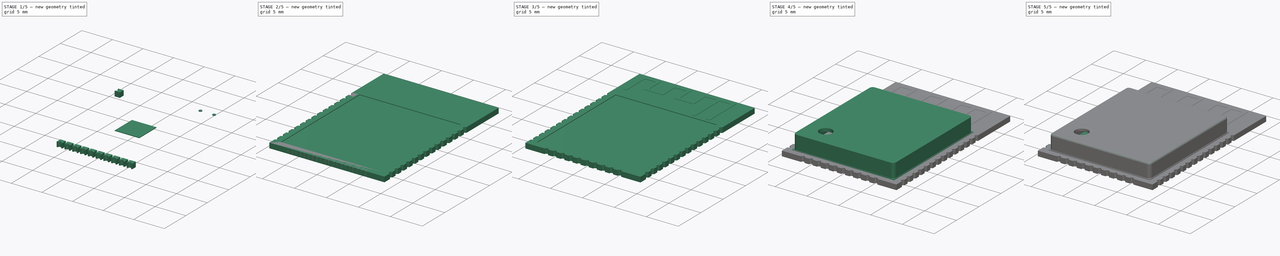
[diagram: build sequence overview — one tinted view per stage of 5, left to right]
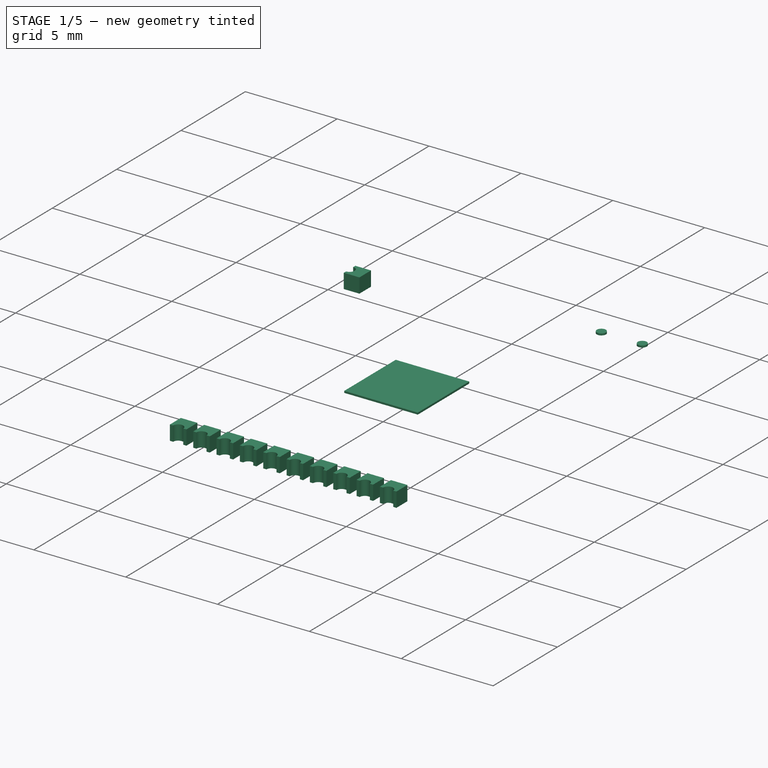
[diagram: stage 1 of 5 — iso view after this stage's code; geometry added in this stage tinted green]
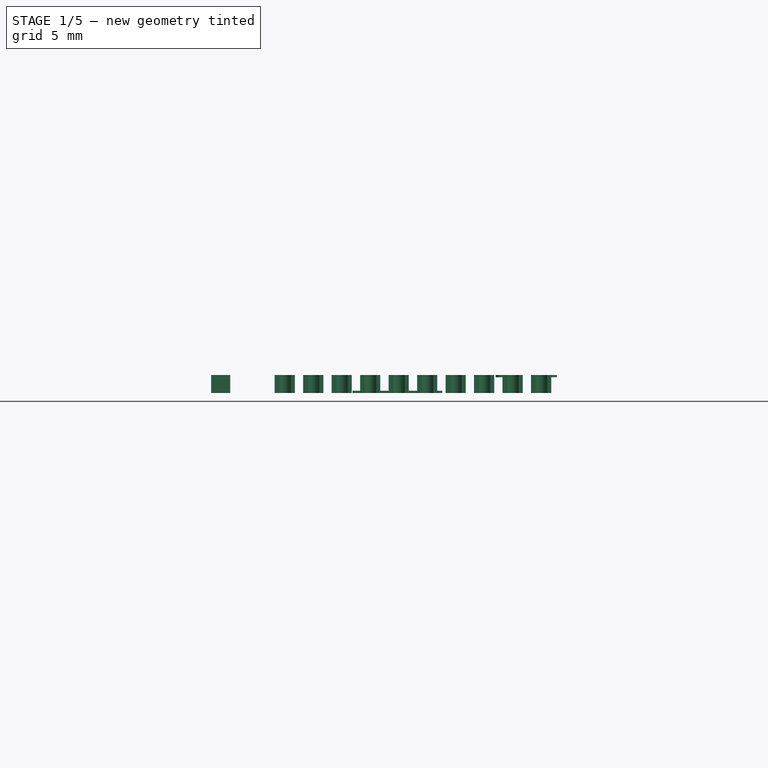
[diagram: stage 1 of 5 — front view after this stage's code; geometry added in this stage tinted green]
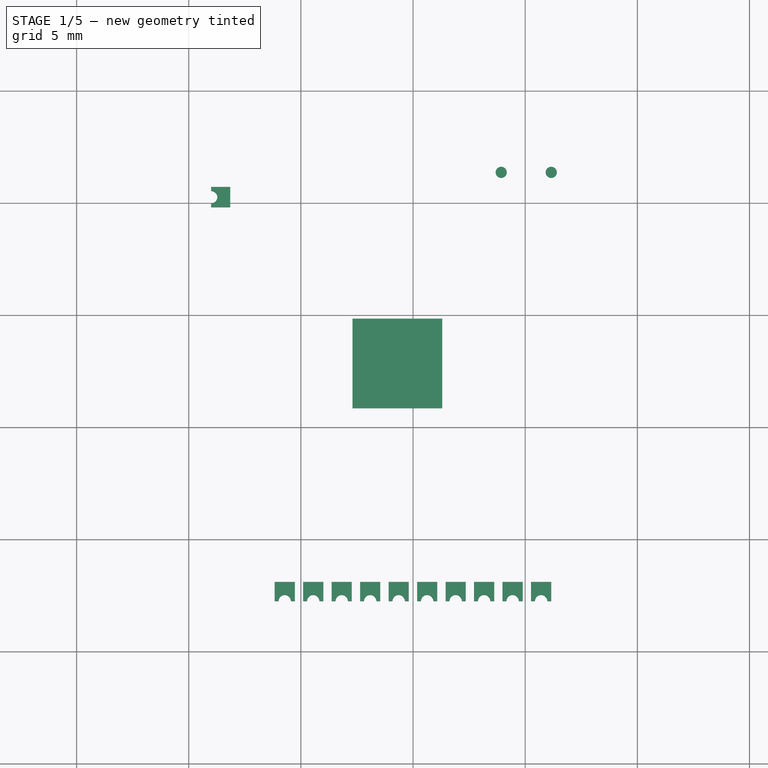
[diagram: stage 1 of 5 — top view after this stage's code; geometry added in this stage tinted green]
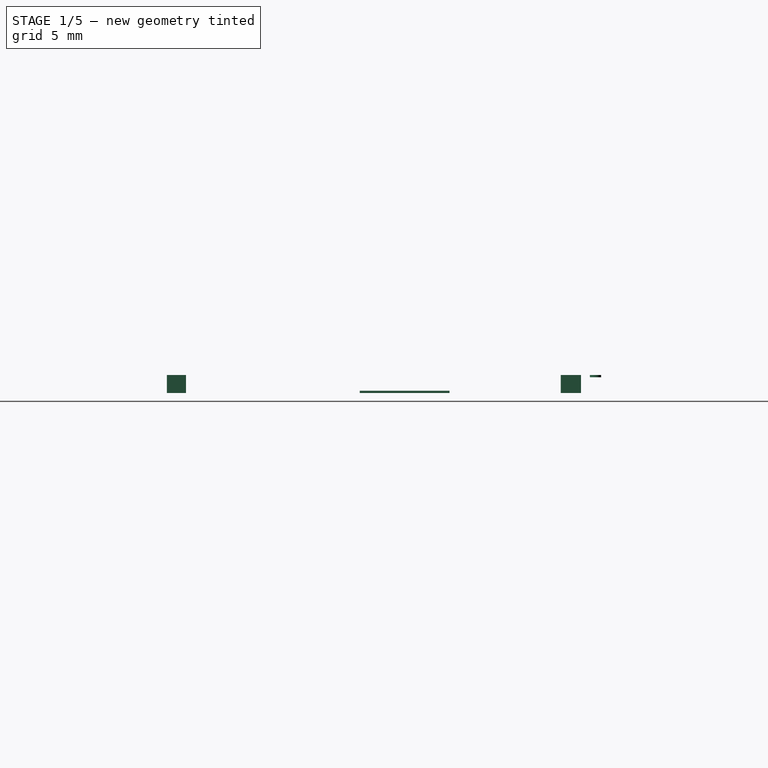
[diagram: stage 1 of 5 — right view after this stage's code; geometry added in this stage tinted green]
FCSTD DOCUMENT  (FreeCAD 0.17R13370 (Git))
Label: ESP-WROOM-32
License: All rights reserved
LicenseURL: http://en.wikipedia.org/wiki/All_rights_reserved
objects: Sketcher::SketchObject×16, PartDesign::Pocket×8, PartDesign::Pad×7, PartDesign::Body×7, PartDesign::Fillet×7, PartDesign::ShapeBinder×6, Part::Feature×3, Part::Extrusion×3, PartDesign::LinearPattern×2, Part::FeaturePython×2, Part::MultiFuse×2, PartDesign::Mirrored×1, PartDesign::MultiTransform×1, Part::Mirroring×1, Image::ImagePlane×1
note: 81 computed .brp shape members not serialized (recipe doc carries the construction recipe); baked Part::Feature solids carry a one-line shape summary decoded from their .brp

FEATURE [PartDesign::ShapeBinder] CopyLinearPattern001001
FEATURE [Sketcher::SketchObject] Sketch010
  ExternalGeometry = -> [CopyLinearPattern001001]
  MapMode = 5
  Placement = pos=(0,0,0.8) rot=(0,0,1;0rad)
  Support = -> [CopyLinearPattern001001]
  sketch-geometry (6):
    g0: LineSegment StartX=-9 StartY=5.71 StartZ=0 EndX=-8.15 EndY=5.71 EndZ=0
    g1: LineSegment StartX=-8.15 StartY=5.71 StartZ=0 EndX=-8.15 EndY=4.81 EndZ=0
    g2: LineSegment StartX=-8.15 StartY=4.81 StartZ=0 EndX=-9 EndY=4.81 EndZ=0
    g3: ArcOfCircle CenterX=-9 CenterY=5.26 CenterZ=0 NormalX=0 NormalY=0 NormalZ=1 AngleXU=0 Radius=0.275 StartAngle=4.71239 EndAngle=7.85398
    g4: LineSegment StartX=-9 StartY=5.535 StartZ=0 EndX=-9 EndY=5.71 EndZ=0
    g5: LineSegment StartX=-9 StartY=4.985 StartZ=0 EndX=-9 EndY=4.81 EndZ=0
  constraints (15):
    c: Coincident(g0,g1)
    c: Coincident(g1,g2)
    c: Horizontal(g0)
    c: Horizontal(g2)
    c: Vertical(g1)
    c: DistanceX(g0,g0) = 0.85
    c: Coincident(g0,g-3)
    c: Radius(g3) = 0.275
    c: DistanceY(g2,g3) = 0.45
    c: Coincident(g4,g3)
    c: Coincident(g4,g0)
    c: Vertical(g4)
    c: Coincident(g5,g3)
    c: Coincident(g5,g2)
    c: Vertical(g5)
FEATURE [PartDesign::Pad] Pad004
  Length = 0.8
  Length2 = 100
  Profile = -> Sketch010
  Reversed = true
  Type = 0
FEATURE [PartDesign::ShapeBinder] CopyLinearPattern001002
FEATURE [Sketcher::SketchObject] Sketch011
  ExternalGeometry = -> [CopyLinearPattern001002]
  MapMode = 5
  Placement = pos=(0,0,0.8) rot=(0,0,1;0rad)
  Support = -> [CopyLinearPattern001002]
  sketch-geometry (6):
    g0: LineSegment StartX=-9 StartY=5.71 StartZ=0 EndX=-8.15 EndY=5.71 EndZ=0
    g1: LineSegment StartX=-8.15 StartY=5.71 StartZ=0 EndX=-8.15 EndY=4.81 EndZ=0
    g2: LineSegment StartX=-8.15 StartY=4.81 StartZ=0 EndX=-9 EndY=4.81 EndZ=0
    g3: ArcOfCircle CenterX=-9 CenterY=5.26 CenterZ=0 NormalX=0 NormalY=0 NormalZ=1 AngleXU=0 Radius=0.275 StartAngle=4.71239 EndAngle=7.85398
    g4: LineSegment StartX=-9 StartY=5.535 StartZ=0 EndX=-9 EndY=5.71 EndZ=0
    g5: LineSegment StartX=-9 StartY=4.985 StartZ=0 EndX=-9 EndY=4.81 EndZ=0
  constraints (15):
    c: Coincident(g0,g1)
    c: Coincident(g1,g2)
    c: Horizontal(g0)
    c: Horizontal(g2)
    c: Vertical(g1)
    c: DistanceX(g0,g0) = 0.85
    c: Coincident(g0,g-3)
    c: Radius(g3) = 0.275
    c: DistanceY(g2,g3) = 0.45
    c: Coincident(g4,g3)
    c: Coincident(g4,g0)
    c: Vertical(g4)
    c: Coincident(g5,g3)
    c: Coincident(g5,g2)
    c: Vertical(g5)
FEATURE [PartDesign::Pad] Pad005
  Length = 0.8
  Length2 = 100
  Profile = -> Sketch011
  Reversed = true
  Type = 0
FEATURE [PartDesign::Body] Body005  label="pad001"
  Group = -> [CopyLinearPattern001002,Sketch011,Pad005]
  Origin = -> Origin005
  Tip = -> Pad005
FEATURE [Part::FeaturePython] Array001  # Draft array (typed FeaturePython)
  Angle = 360
  ArrayType = 0
  Axis = (0,0,1)
  Base = -> Body005
  Center = (0,0,0)
  Fuse = false
  IntervalAxis = (0,0,0)
  IntervalX = (1,0,0)
  IntervalY = (0,1.27,0)
  IntervalZ = (0,0,0)
  NumberPolar = 1
  NumberX = 1
  NumberY = 10
  NumberZ = 1
  Placement = pos=(10.97,-3.75,0) rot=(0,0,1;1.5708rad)
FEATURE [Part::Feature] Face
  Placement = pos=(0,0,0.1) rot=(0,0,1;0rad)
  shape: bbox 4 x 4 x 2e-07 mm, 1 faces, 0 solids (baked)
FEATURE [Part::Extrusion] Extrusion  label="GND_pad_lg"
  Base = -> Face
  Dir = (0,0,-0.1)
  DirMode = 0
  FaceMakerClass = Part::FaceMakerBullseye
  LengthFwd = 0
  LengthRev = 0
  Solid = true
  Symmetric = false
FEATURE [PartDesign::Body] Body  label="pcb_base"
  Group = -> [Sketch,Pad,Sketch001,Pocket,Sketch007,Pocket003,MultiTransform,LinearPattern,Mirrored,Sketch008,Pocket004,LinearPattern001,Sketch012,Pocket005,Sketch015,Pocket007]
  Origin = -> Origin
  Tip = -> Pocket007
FEATURE [Part::Feature] Face001
  Placement = pos=(0,0,-0.1) rot=(0,0,1;0rad)
  shape: bbox 0.5 x 0.5 x 2e-07 mm, 1 faces, 0 solids (baked)
FEATURE [Part::Extrusion] Extrusion001  label="antenna_pad1"
  Base = -> Face001
  Dir = (0,0,0.1)
  DirMode = 0
  FaceMakerClass = Part::FaceMakerBullseye
  LengthFwd = 0
  LengthRev = 0
  Solid = true
  Symmetric = false
FEATURE [Part::Feature] Face002
  Placement = pos=(0,0,-0.1) rot=(0,0,1;0rad)
  shape: bbox 0.5 x 0.5 x 2e-07 mm, 1 faces, 0 solids (baked)
FEATURE [Part::Extrusion] Extrusion002  label="antenna_pad2"
  Base = -> Face002
  Dir = (0,0,0.1)
  DirMode = 0
  FaceMakerClass = Part::FaceMakerBullseye
  LengthFwd = 0
  LengthRev = 0
  Solid = true
  Symmetric = false
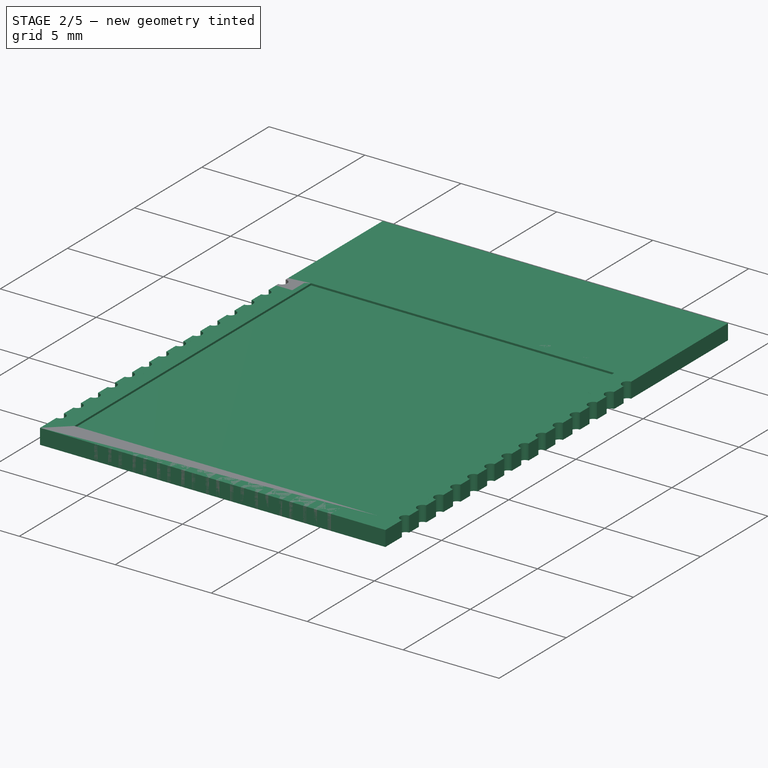
[diagram: stage 2 of 5 — iso view after this stage's code; geometry added in this stage tinted green]
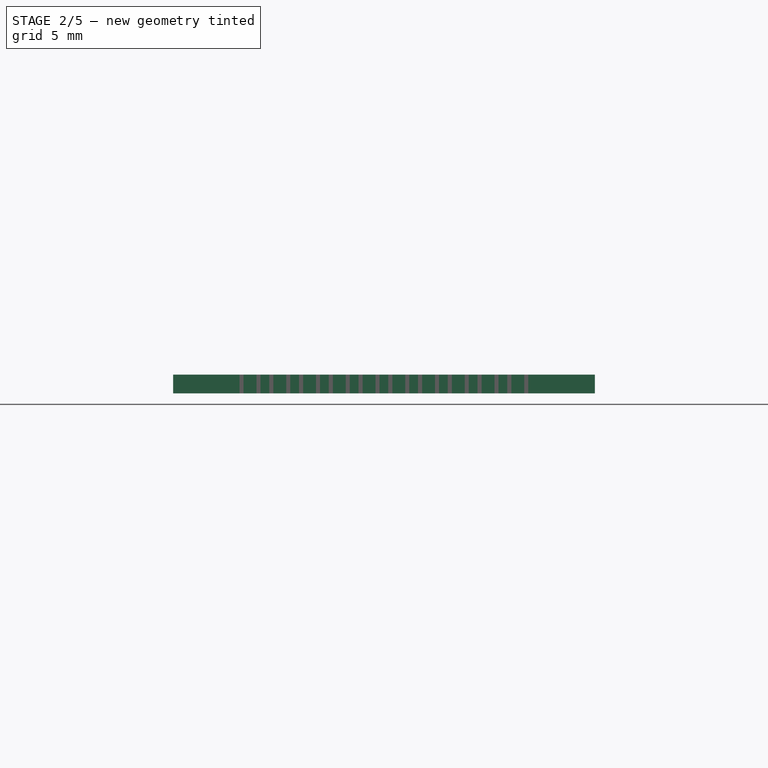
[diagram: stage 2 of 5 — front view after this stage's code; geometry added in this stage tinted green]
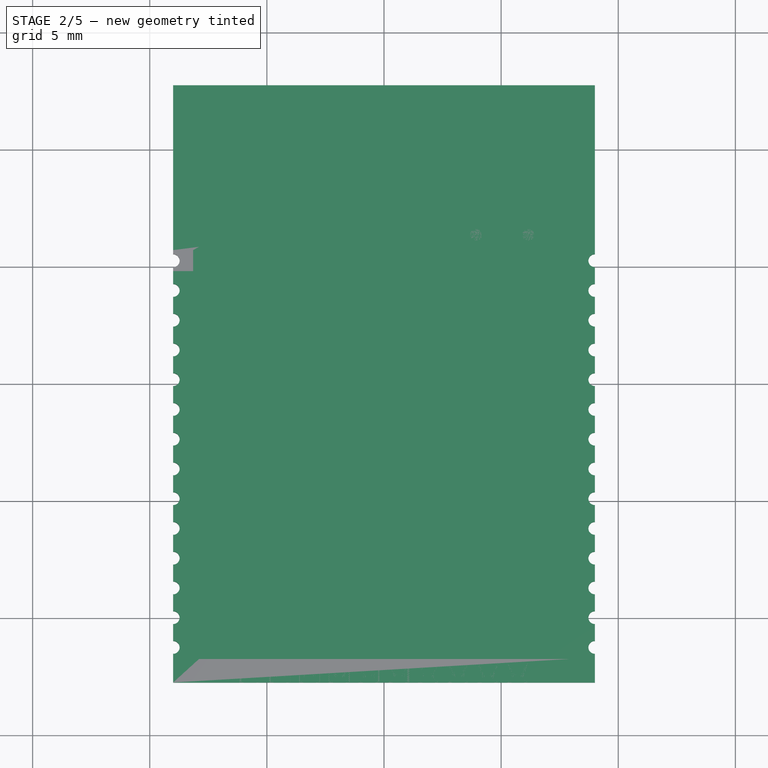
[diagram: stage 2 of 5 — top view after this stage's code; geometry added in this stage tinted green]
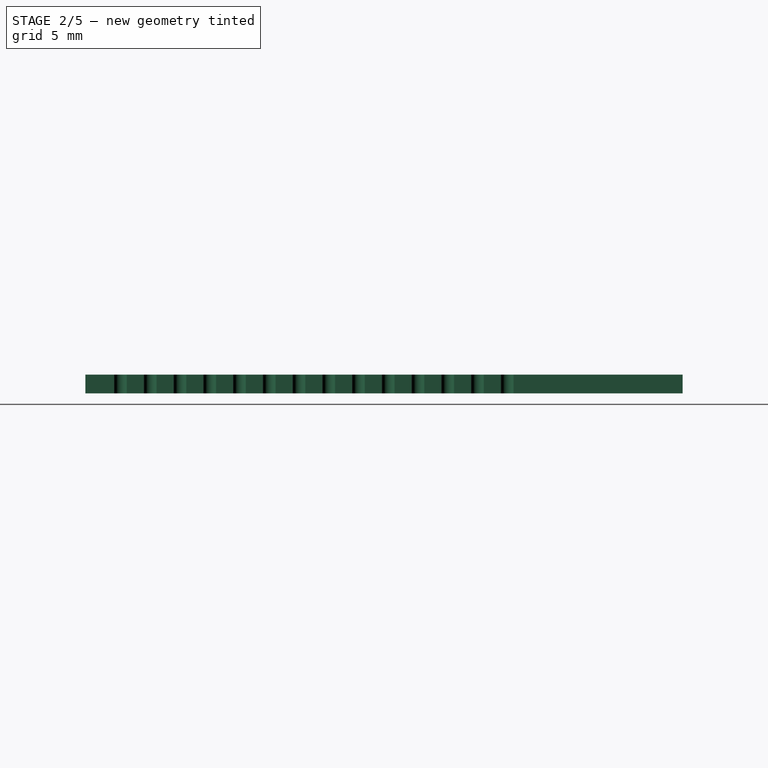
[diagram: stage 2 of 5 — right view after this stage's code; geometry added in this stage tinted green]
FEATURE [Sketcher::SketchObject] Sketch
  MapMode = 5
  Support = -> [XY_Plane]
  sketch-geometry (4):
    g0: LineSegment StartX=-9 StartY=12.75 StartZ=0 EndX=9 EndY=12.75 EndZ=0
    g1: LineSegment StartX=9 StartY=12.75 StartZ=0 EndX=9 EndY=-12.75 EndZ=0
    g2: LineSegment StartX=9 StartY=-12.75 StartZ=0 EndX=-9 EndY=-12.75 EndZ=0
    g3: LineSegment StartX=-9 StartY=-12.75 StartZ=0 EndX=-9 EndY=12.75 EndZ=0
  constraints (12):
    c: Coincident(g0,g1)
    c: Coincident(g1,g2)
    c: Coincident(g2,g3)
    c: Coincident(g3,g0)
    c: Horizontal(g0)
    c: Horizontal(g2)
    c: Vertical(g1)
    c: Vertical(g3)
    c: Symmetric(g0,g0,g-2)
    c: Symmetric(g0,g1,g-1)
    c: Distance(g0) = 18
    c: Distance(g3) = 25.5
FEATURE [PartDesign::Pad] Pad
  Length = 0.8
  Length2 = 100
  Profile = -> Sketch
  Type = 0
FEATURE [Sketcher::SketchObject] Sketch001
  ExternalGeometry = -> [Pad]
  MapMode = 5
  Placement = pos=(0,0,0.8) rot=(0,0,1;0rad)
  Support = -> [Pad]
  sketch-geometry (4):
    g0: LineSegment StartX=-7.9 StartY=5.85 StartZ=0 EndX=7.9 EndY=5.85 EndZ=0
    g1: LineSegment StartX=7.9 StartY=5.85 StartZ=0 EndX=7.9 EndY=-11.75 EndZ=0
    g2: LineSegment StartX=7.9 StartY=-11.75 StartZ=0 EndX=-7.9 EndY=-11.75 EndZ=0
    g3: LineSegment StartX=-7.9 StartY=-11.75 StartZ=0 EndX=-7.9 EndY=5.85 EndZ=0
  constraints (12):
    c: Coincident(g0,g1)
    c: Coincident(g1,g2)
    c: Coincident(g2,g3)
    c: Coincident(g3,g0)
    c: Horizontal(g0)
    c: Horizontal(g2)
    c: Vertical(g1)
    c: Vertical(g3)
    c: DistanceY(g0,g-3) = 6.9
    c: Symmetric(g0,g0,g-2)
    c: Distance(g0) = 15.8
    c: Distance(g3) = 17.6
FEATURE [PartDesign::Pocket] Pocket
  BaseFeature = -> Pad
  Length = 0.1
  Length2 = 100
  Profile = -> Sketch001
  Type = 0
FEATURE [PartDesign::Body] Body002  label="cover"
  Group = -> [CopyFillet003,Sketch003,Pad002,Sketch004,Pad003,Sketch005,Pocket001,Sketch006,Pocket002,Fillet,Fillet001,Fillet002,Fillet003,Fillet004]
  Origin = -> Origin002
  Tip = -> Fillet004
FEATURE [Sketcher::SketchObject] Sketch007
  ExternalGeometry = -> [Pocket]
  MapMode = 5
  Placement = pos=(0,0,0.8) rot=(0,0,1;0rad)
  Support = -> [Pocket]
  sketch-geometry (4):
    g0: LineSegment StartX=-9 StartY=-10.8 StartZ=0 EndX=-8.15 EndY=-10.8 EndZ=0
    g1: LineSegment StartX=-8.15 StartY=-10.8 StartZ=0 EndX=-8.15 EndY=-11.7 EndZ=0
    g2: LineSegment StartX=-8.15 StartY=-11.7 StartZ=0 EndX=-9 EndY=-11.7 EndZ=0
    g3: LineSegment StartX=-9 StartY=-11.7 StartZ=0 EndX=-9 EndY=-10.8 EndZ=0
  constraints (12):
    c: Coincident(g0,g1)
    c: Coincident(g1,g2)
    c: Coincident(g2,g3)
    c: Coincident(g3,g0)
    c: Horizontal(g0)
    c: Horizontal(g2)
    c: Vertical(g1)
    c: Vertical(g3)
    c: DistanceY(g-3,g2) = 1.05
    c: Distance(g3) = 0.9
    c: Distance(g0) = 0.85
    c: DistanceX(g2,g-3) = 0
FEATURE [PartDesign::Pocket] Pocket003
  BaseFeature = -> Pocket
  Length = 0.8
  Length2 = 100
  Profile = -> Sketch007
  Type = 0
FEATURE [PartDesign::LinearPattern] LinearPattern
  Direction = -> Sketch007 [V_Axis]
  Length = 16.51
  Occurrences = 14
FEATURE [PartDesign::Mirrored] Mirrored
  MirrorPlane = -> Sketch007 [V_Axis]
FEATURE [PartDesign::MultiTransform] MultiTransform
  BaseFeature = -> Pocket003
  Originals = -> [Pocket003]
  Transformations = -> [LinearPattern,Mirrored]
FEATURE [PartDesign::Body] Body004  label="pad"
  Group = -> [CopyLinearPattern001001,Sketch010,Pad004]
  Origin = -> Origin004
  Tip = -> Pad004
FEATURE [Part::FeaturePython] Array  # Draft array (typed FeaturePython)
  Angle = 360
  ArrayType = 0
  Axis = (0,0,1)
  Base = -> Body004
  Center = (0,0,0)
  Fuse = false
  IntervalAxis = (0,1.27,0)
  IntervalX = (17.15,0,0)
  IntervalY = (0,-1.27,0)
  IntervalZ = (0,0,0)
  NumberPolar = 1
  NumberX = 1
  NumberY = 14
  NumberZ = 1
FEATURE [Part::Mirroring] mirror  label="Mirror of Array"
  Base = (0,12.75,0)
  Normal = (-1,0,0)
  Source = -> Array
FEATURE [Part::MultiFuse] Fusion  label="pads"
  Shapes = -> [Extrusion002,Extrusion001,Extrusion,Array001,mirror,Array]
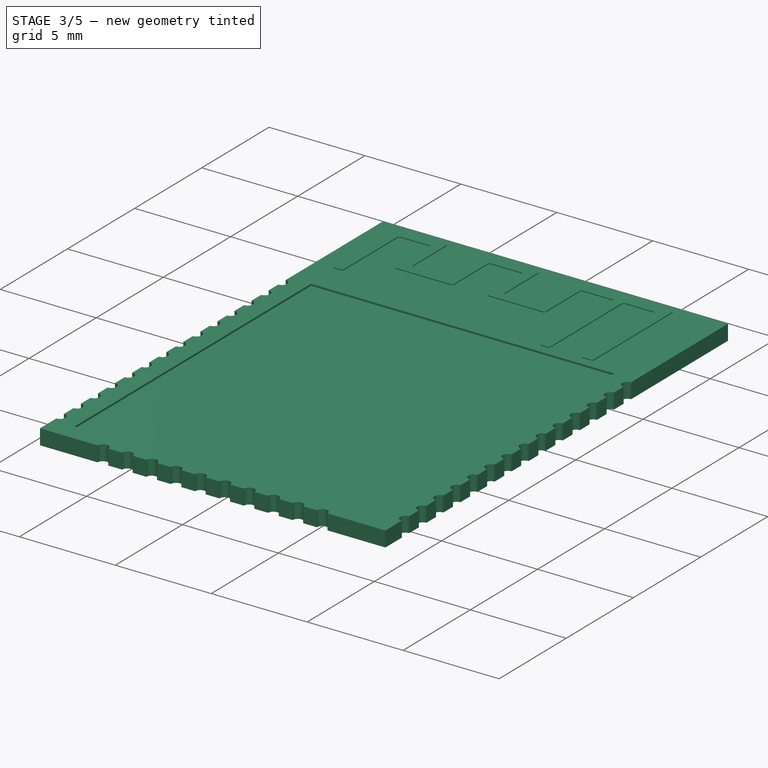
[diagram: stage 3 of 5 — iso view after this stage's code; geometry added in this stage tinted green]
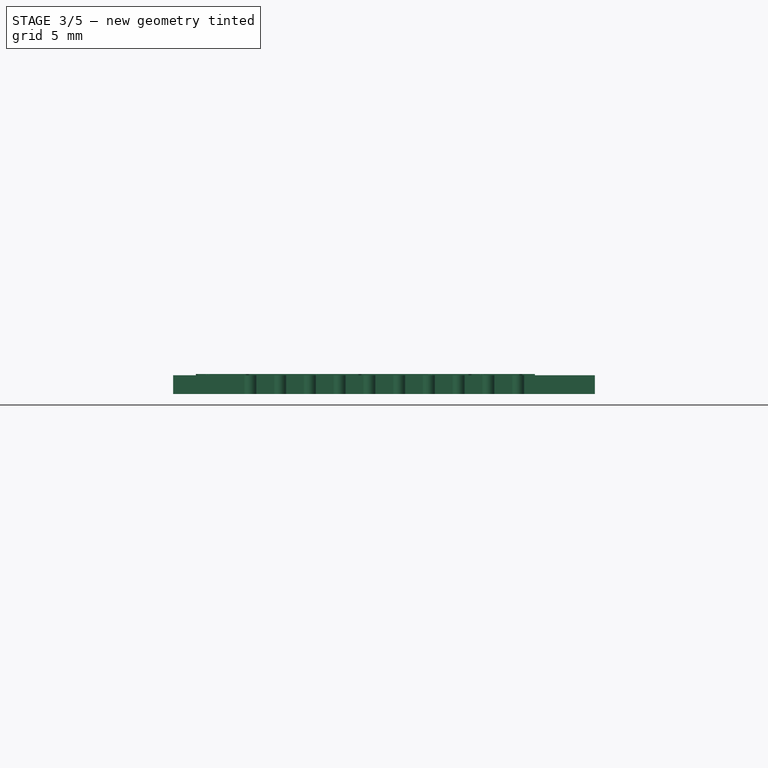
[diagram: stage 3 of 5 — front view after this stage's code; geometry added in this stage tinted green]
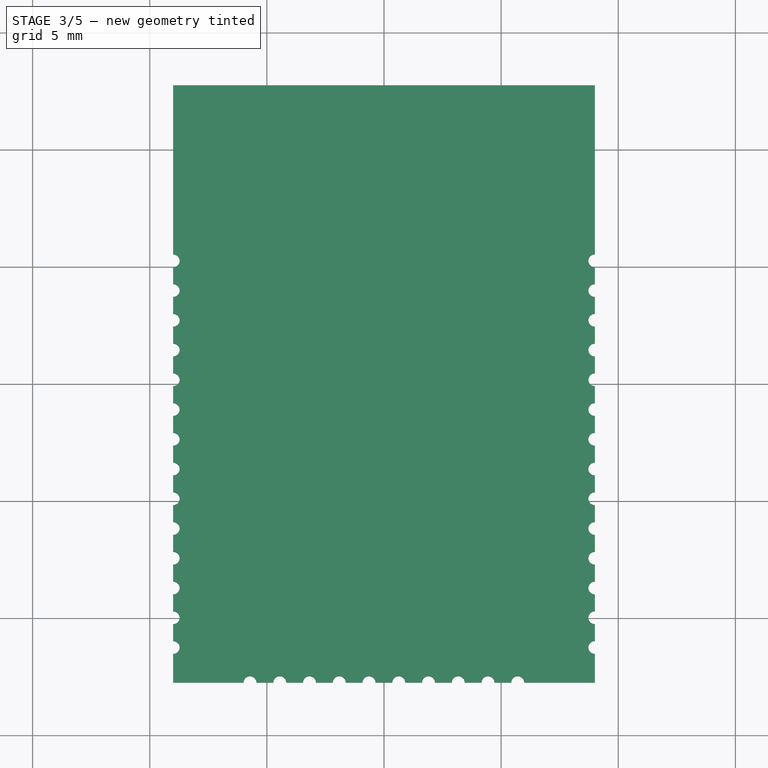
[diagram: stage 3 of 5 — top view after this stage's code; geometry added in this stage tinted green]
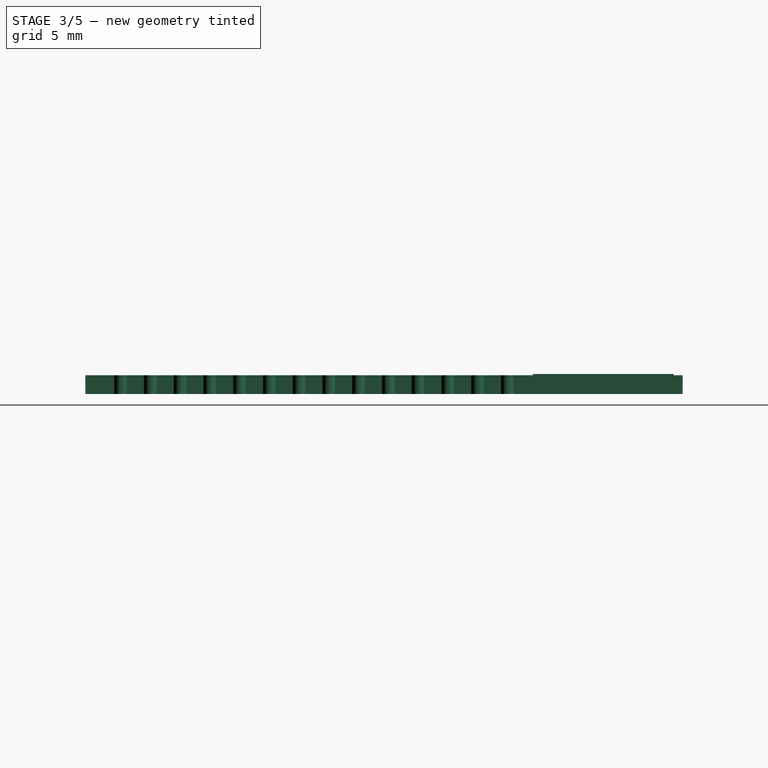
[diagram: stage 3 of 5 — right view after this stage's code; geometry added in this stage tinted green]
FEATURE [Sketcher::SketchObject] Sketch008
  ExternalGeometry = -> [MultiTransform]
  MapMode = 5
  Placement = pos=(0,0,0.8) rot=(0,0,1;0rad)
  Support = -> [MultiTransform]
  sketch-geometry (4):
    g0: LineSegment StartX=-6.17 StartY=-11.9 StartZ=0 EndX=-5.27 EndY=-11.9 EndZ=0
    g1: LineSegment StartX=-5.27 StartY=-11.9 StartZ=0 EndX=-5.27 EndY=-12.75 EndZ=0
    g2: LineSegment StartX=-5.27 StartY=-12.75 StartZ=0 EndX=-6.17 EndY=-12.75 EndZ=0
    g3: LineSegment StartX=-6.17 StartY=-12.75 StartZ=0 EndX=-6.17 EndY=-11.9 EndZ=0
  constraints (12):
    c: Coincident(g0,g1)
    c: Coincident(g1,g2)
    c: Coincident(g2,g3)
    c: Coincident(g3,g0)
    c: Horizontal(g0)
    c: Horizontal(g2)
    c: Vertical(g1)
    c: Vertical(g3)
    c: Distance(g3) = 0.85
    c: Distance(g0) = 0.9
    c: DistanceY(g-3,g2) = 0
    c: DistanceX(g-3,g2) = 2.83
FEATURE [PartDesign::Pocket] Pocket004
  BaseFeature = -> MultiTransform
  Length = 0.8
  Length2 = 100
  Profile = -> Sketch008
  Type = 0
FEATURE [PartDesign::LinearPattern] LinearPattern001
  BaseFeature = -> Pocket004
  Direction = -> Sketch008 [H_Axis]
  Length = 11.43
  Occurrences = 10
  Originals = -> [Pocket004]
FEATURE [Sketcher::SketchObject] Sketch012
  ExternalGeometry = -> [LinearPattern001]
  MapMode = 5
  Placement = pos=(0,0,0) rot=(1,0,0;3.14159rad)
  Support = -> [LinearPattern001]
  sketch-geometry (4):
    g0: LineSegment StartX=1.3 StartY=0.15 StartZ=0 EndX=-2.7 EndY=0.15 EndZ=0
    g1: LineSegment StartX=-2.7 StartY=0.15 StartZ=0 EndX=-2.7 EndY=4.15 EndZ=0
    g2: LineSegment StartX=-2.7 StartY=4.15 StartZ=0 EndX=1.3 EndY=4.15 EndZ=0
    g3: LineSegment StartX=1.3 StartY=4.15 StartZ=0 EndX=1.3 EndY=0.15 EndZ=0
  constraints (12):
    c: Coincident(g0,g1)
    c: Coincident(g1,g2)
    c: Coincident(g2,g3)
    c: Coincident(g3,g0)
    c: Horizontal(g0)
    c: Horizontal(g2)
    c: Vertical(g1)
    c: Vertical(g3)
    c: Equal(g0,g1)
    c: Distance(g0) = 4
    c: DistanceY(g1,g-3) = 8.6
    c: DistanceX(g-3,g1) = 6.3
FEATURE [PartDesign::Pocket] Pocket005
  BaseFeature = -> LinearPattern001
  Length = 0.1
  Length2 = 100
  Profile = -> Sketch012
  Type = 0
FEATURE [PartDesign::ShapeBinder] CopyPocket005
FEATURE [Sketcher::SketchObject] Sketch013
  ExternalGeometry = -> [CopyPocket005]
  MapMode = 5
  Placement = pos=(0,0,0.8) rot=(0,0,1;0rad)
  Support = -> [CopyPocket005]
  sketch-geometry (28):
    g0: LineSegment StartX=-8.03 StartY=7.68 StartZ=0 EndX=-8.03 EndY=12.35 EndZ=0
    g1: LineSegment StartX=-8.03 StartY=12.35 StartZ=0 EndX=-5.33 EndY=12.35 EndZ=0
    g2: LineSegment StartX=-5.33 StartY=12.35 StartZ=0 EndX=-5.33 EndY=9.65 EndZ=0
    g3: LineSegment StartX=-5.33 StartY=9.65 StartZ=0 EndX=-3.33 EndY=9.65 EndZ=0
    g4: LineSegment StartX=-3.33 StartY=9.65 StartZ=0 EndX=-3.33 EndY=12.35 EndZ=0
    g5: LineSegment StartX=-3.33 StartY=12.35 StartZ=0 EndX=-0.53 EndY=12.35 EndZ=0
    g6: LineSegment StartX=-0.53 StartY=12.35 StartZ=0 EndX=-0.53 EndY=9.65 EndZ=0
    g7: LineSegment StartX=-0.53 StartY=9.65 StartZ=0 EndX=1.47 EndY=9.65 EndZ=0
    g8: LineSegment StartX=1.47 StartY=9.65 StartZ=0 EndX=1.47 EndY=12.35 EndZ=0
    g9: LineSegment StartX=1.47 StartY=12.35 StartZ=0 EndX=6.44 EndY=12.35 EndZ=0
    g10: LineSegment StartX=6.44 StartY=12.35 StartZ=0 EndX=6.44 EndY=6.35 EndZ=0
    g11: LineSegment StartX=6.44 StartY=6.35 StartZ=0 EndX=5.84 EndY=6.35 EndZ=0
    g12: LineSegment StartX=5.84 StartY=6.35 StartZ=0 EndX=5.84 EndY=11.85 EndZ=0
    g13: LineSegment StartX=5.84 StartY=11.85 StartZ=0 EndX=4.17 EndY=11.85 EndZ=0
    g14: LineSegment StartX=4.17 StartY=11.85 StartZ=0 EndX=4.17 EndY=6.35 EndZ=0
    g15: LineSegment StartX=4.17 StartY=6.35 StartZ=0 EndX=3.67 EndY=6.35 EndZ=0
    g16: LineSegment StartX=3.67 StartY=6.35 StartZ=0 EndX=3.67 EndY=11.85 EndZ=0
    g17: LineSegment StartX=3.67 StartY=11.85 StartZ=0 EndX=1.97 EndY=11.85 EndZ=0
    g18: LineSegment StartX=1.97 StartY=11.85 StartZ=0 EndX=1.97 EndY=9.15 EndZ=0
    g19: LineSegment StartX=1.97 StartY=9.15 StartZ=0 EndX=-1.03 EndY=9.15 EndZ=0
    g20: LineSegment StartX=-1.03 StartY=9.15 StartZ=0 EndX=-1.03 EndY=11.85 EndZ=0
    g21: LineSegment StartX=-1.03 StartY=11.85 StartZ=0 EndX=-2.83 EndY=11.85 EndZ=0
    g22: LineSegment StartX=-2.83 StartY=11.85 StartZ=0 EndX=-2.83 EndY=9.15 EndZ=0
    g23: LineSegment StartX=-2.83 StartY=9.15 StartZ=0 EndX=-5.83 EndY=9.15 EndZ=0
    g24: LineSegment StartX=-5.83 StartY=9.15 StartZ=0 EndX=-5.83 EndY=11.85 EndZ=0
    g25: LineSegment StartX=-5.83 StartY=11.85 StartZ=0 EndX=-7.53 EndY=11.85 EndZ=0
    g26: LineSegment StartX=-7.53 StartY=11.85 StartZ=0 EndX=-7.53 EndY=7.68 EndZ=0
    g27: LineSegment StartX=-7.53 StartY=7.68 StartZ=0 EndX=-8.03 EndY=7.68 EndZ=0
  constraints (84):
    c: Vertical(g0)
    c: Coincident(g0,g1)
    c: Horizontal(g1)
    c: Coincident(g1,g2)
    c: Vertical(g2)
    c: Coincident(g2,g3)
    c: Horizontal(g3)
    c: Coincident(g3,g4)
    c: Vertical(g4)
    c: Coincident(g4,g5)
    c: Horizontal(g5)
    c: Coincident(g5,g6)
    c: Vertical(g6)
    c: Coincident(g6,g7)
    c: Horizontal(g7)
    c: Coincident(g7,g8)
    c: Vertical(g8)
    c: Coincident(g8,g9)
    c: Horizontal(g9)
    c: Coincident(g9,g10)
    c: Vertical(g10)
    c: Coincident(g10,g11)
    c: Horizontal(g11)
    c: Coincident(g11,g12)
    c: Vertical(g12)
    c: Coincident(g12,g13)
    c: Coincident(g13,g14)
    c: Vertical(g14)
    c: Coincident(g14,g15)
    c: Horizontal(g15)
    c: Coincident(g15,g16)
    c: Vertical(g16)
    c: Coincident(g16,g17)
    c: Coincident(g17,g18)
    c: Vertical(g18)
    c: Coincident(g18,g19)
    c: Horizontal(g19)
    c: Coincident(g19,g20)
    c: Vertical(g20)
    c: Coincident(g20,g21)
    c: Horizontal(g21)
    c: Coincident(g21,g22)
    c: Vertical(g22)
    c: Coincident(g22,g23)
    c: Horizontal(g23)
    c: Coincident(g23,g24)
    c: Vertical(g24)
    c: Coincident(g24,g25)
    c: Horizontal(g25)
    c: Coincident(g25,g26)
    c: Vertical(g26)
    c: Coincident(g26,g27)
    c: Coincident(g27,g0)
    c: Horizontal(g27)
    c: Distance(g27) = 0.5
    c: DistanceY(g25,g0) = 0.5
    c: DistanceX(g24,g1) = 0.5
    c: DistanceY(g23,g2) = 0.5
    c: DistanceY(g21,g4) = 0.5
    c: DistanceX(g3,g22) = 0.5
    c: DistanceX(g20,g5) = 0.5
    c: DistanceY(g19,g6) = 0.5
    c: DistanceX(g7,g18) = 0.5
    c: Horizontal(g17)
    c: DistanceY(g17,g8) = 0.5
    c: Horizontal(g13)
    c: DistanceY(g12,g9) = 0.5
    c: DistanceX(g16,g13) = 0.5
    c: DistanceX(g12,g9) = 0.6
    c: DistanceY(g0,g-3) = 0.4
    c: DistanceY(g4,g-3) = 0.4
    c: DistanceY(g8,g5) = 0
    c: DistanceX(g25,g24) = 1.7
    c: DistanceX(g2,g3) = 2
    c: DistanceX(g21,g20) = 1.8
    c: DistanceX(g5,g8) = 2
    c: DistanceX(g17,g16) = 1.7
    c: DistanceX(g13,g12) = 1.67
    c: DistanceY(g0,g0) = 4.67
    c: DistanceY(g2,g1) = 2.7
    c: DistanceY(g6,g5) = 2.7
    c: DistanceY(g15,g16) = 5.5
    c: DistanceY(g11,g12) = 5.5
    c: DistanceX(g-3,g0) = 0.97
FEATURE [PartDesign::Pad] Pad006
  Length = 0.05
  Length2 = 100
  Profile = -> Sketch013
  Type = 0
FEATURE [PartDesign::Fillet] Fillet005
  Base = -> Pad006 [Edge32,Edge29,Edge26,Edge38,Edge35,Edge41,Edge44,Edge47,Edge50,Edge53,Edge56,Edge23,Edge59,Edge20,Edge17,Edge62,Edge14,Edge65,Edge11,Edge68,Edge71,Edge8,Edge74,Edge5,Edge2,Edge77,Edge80,Edge1]
  BaseFeature = -> Pad006
  Radius = 0.1
FEATURE [PartDesign::Body] Body006  label="antenna"
  Group = -> [CopyPocket005,Sketch013,Pad006,Fillet005,Fillet006,Sketch014,Pocket006]
  Origin = -> Origin006
  Tip = -> Pocket006
FEATURE [Sketcher::SketchObject] Sketch015
  MapMode = 5
  Placement = pos=(0,0,0.8) rot=(0,0,1;0rad)
  Support = -> [Pocket005]
  sketch-geometry (2):
    g0: Circle CenterX=3.93 CenterY=6.36 CenterZ=0 NormalX=0 NormalY=0 NormalZ=1 AngleXU=0 Radius=0.25
    g1: Circle CenterX=6.16 CenterY=6.36 CenterZ=0 NormalX=0 NormalY=0 NormalZ=1 AngleXU=0 Radius=0.25
  constraints (6):
    c: Radius(g0) = 0.25
    c: DistanceY(g0) = 6.36
    c: DistanceX(g0) = 3.93
    c: Equal(g1,g0)
    c: DistanceY(g0,g1) = 0
    c: DistanceX(g0,g1) = 2.23
FEATURE [PartDesign::Pocket] Pocket007
  BaseFeature = -> Pocket005
  Length = 0.1
  Length2 = 100
  Profile = -> Sketch015
  Type = 0
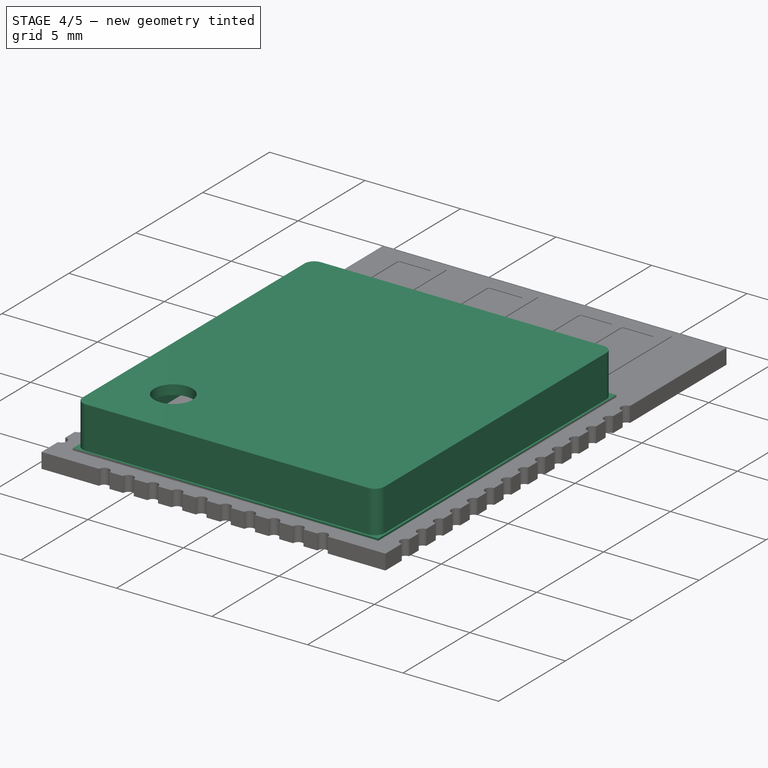
[diagram: stage 4 of 5 — iso view after this stage's code; geometry added in this stage tinted green]
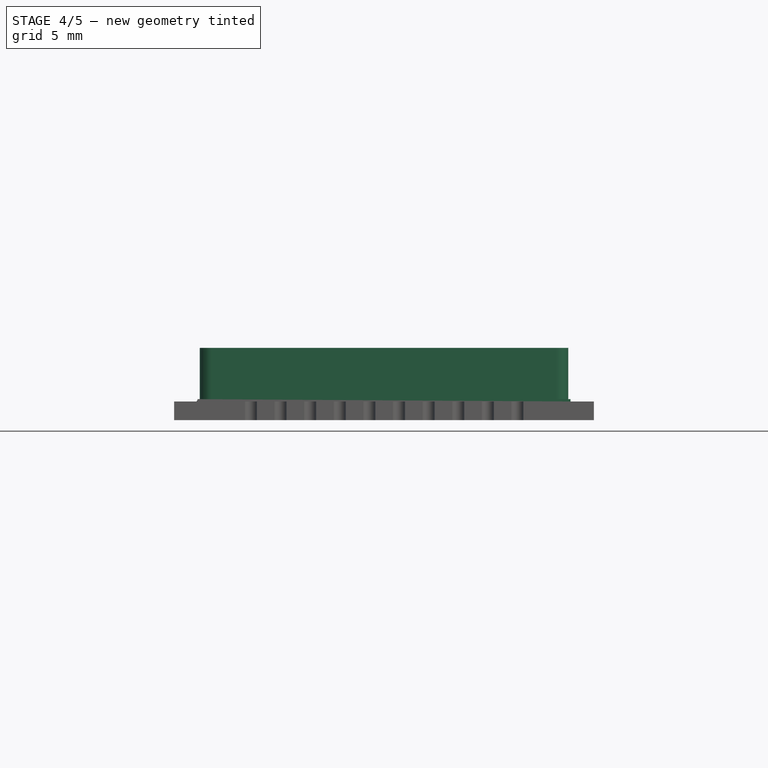
[diagram: stage 4 of 5 — front view after this stage's code; geometry added in this stage tinted green]
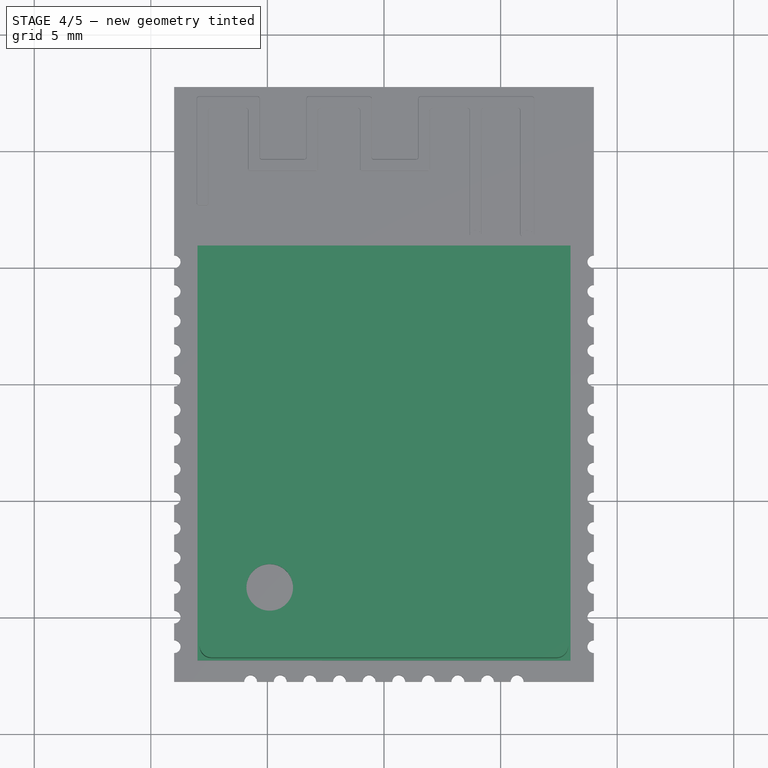
[diagram: stage 4 of 5 — top view after this stage's code; geometry added in this stage tinted green]
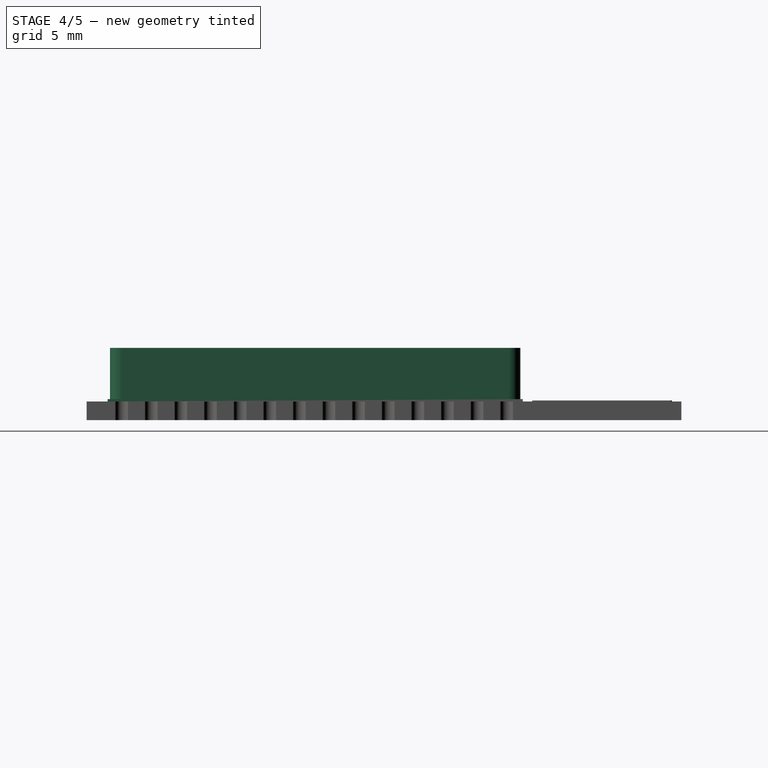
[diagram: stage 4 of 5 — right view after this stage's code; geometry added in this stage tinted green]
FEATURE [PartDesign::Body] Body001  label="cover_base"
  Group = -> [CopyPocket,Sketch002,Pad001]
  Origin = -> Origin001
  Tip = -> Pad001
FEATURE [PartDesign::ShapeBinder] CopyFillet003
  Placement = pos=(0,0,0.1) rot=(0,0,1;0rad)
FEATURE [Sketcher::SketchObject] Sketch003
  MapMode = 5
  Placement = pos=(0,0,0.8) rot=(0,0,1;0rad)
  Support = -> [CopyFillet003]
  sketch-geometry (8):
    g0: LineSegment [constr] StartX=-9 StartY=12.75 StartZ=0 EndX=9 EndY=12.75 EndZ=0
    g1: LineSegment [constr] StartX=9 StartY=12.75 StartZ=0 EndX=9 EndY=-12.75 EndZ=0
    g2: LineSegment [constr] StartX=9 StartY=-12.75 StartZ=0 EndX=-9 EndY=-12.75 EndZ=0
    g3: LineSegment [constr] StartX=-9 StartY=-12.75 StartZ=0 EndX=-9 EndY=12.75 EndZ=0
    g4: LineSegment StartX=-8 StartY=5.95 StartZ=0 EndX=8 EndY=5.95 EndZ=0
    g5: LineSegment StartX=8 StartY=5.95 StartZ=0 EndX=8 EndY=-11.85 EndZ=0
    g6: LineSegment StartX=8 StartY=-11.85 StartZ=0 EndX=-8 EndY=-11.85 EndZ=0
    g7: LineSegment StartX=-8 StartY=-11.85 StartZ=0 EndX=-8 EndY=5.95 EndZ=0
  constraints (24):
    c: Coincident(g0,g1)
    c: Coincident(g1,g2)
    c: Coincident(g2,g3)
    c: Coincident(g3,g0)
    c: Horizontal(g0)
    c: Horizontal(g2)
    c: Vertical(g1)
    c: Vertical(g3)
    c: Symmetric(g0,g0,g-2)
    c: Symmetric(g0,g1,g-1)
    c: Distance(g0) = 18
    c: Distance(g1) = 25.5
    c: Coincident(g4,g5)
    c: Coincident(g5,g6)
    c: Coincident(g6,g7)
    c: Coincident(g7,g4)
    c: Horizontal(g4)
    c: Horizontal(g6)
    c: Vertical(g5)
    c: Vertical(g7)
    c: Symmetric(g4,g4,g-2)
    c: DistanceY(g4,g0) = 6.8
    c: Distance(g4) = 16
    c: Distance(g7) = 17.8
FEATURE [PartDesign::Pad] Pad002
  Length = 0.1
  Length2 = 100
  Offset = 0.1
  Placement = pos=(0,0,0.1) rot=(0,0,1;0rad)
  Profile = -> Sketch003
  Type = 0
FEATURE [Sketcher::SketchObject] Sketch004
  MapMode = 5
  Placement = pos=(0,0,0.9) rot=(0,0,1;0rad)
  Support = -> [Pad002]
  sketch-geometry (8):
    g0: LineSegment [constr] StartX=-9 StartY=12.75 StartZ=0 EndX=9 EndY=12.75 EndZ=0
    g1: LineSegment [constr] StartX=9 StartY=12.75 StartZ=0 EndX=9 EndY=-12.75 EndZ=0
    g2: LineSegment [constr] StartX=9 StartY=-12.75 StartZ=0 EndX=-9 EndY=-12.75 EndZ=0
    g3: LineSegment [constr] StartX=-9 StartY=-12.75 StartZ=0 EndX=-9 EndY=12.75 EndZ=0
    g4: LineSegment StartX=-7.9 StartY=5.85 StartZ=0 EndX=7.9 EndY=5.85 EndZ=0
    g5: LineSegment StartX=7.9 StartY=5.85 StartZ=0 EndX=7.9 EndY=-11.75 EndZ=0
    g6: LineSegment StartX=7.9 StartY=-11.75 StartZ=0 EndX=-7.9 EndY=-11.75 EndZ=0
    g7: LineSegment StartX=-7.9 StartY=-11.75 StartZ=0 EndX=-7.9 EndY=5.85 EndZ=0
  constraints (24):
    c: Coincident(g0,g1)
    c: Coincident(g1,g2)
    c: Coincident(g2,g3)
    c: Coincident(g3,g0)
    c: Horizontal(g0)
    c: Horizontal(g2)
    c: Vertical(g1)
    c: Vertical(g3)
    c: Symmetric(g0,g0,g-2)
    c: Symmetric(g0,g1,g-1)
    c: Distance(g0) = 18
    c: Distance(g3) = 25.5
    c: Coincident(g4,g5)
    c: Coincident(g5,g6)
    c: Coincident(g6,g7)
    c: Coincident(g7,g4)
    c: Horizontal(g4)
    c: Horizontal(g6)
    c: Vertical(g5)
    c: Vertical(g7)
    c: Symmetric(g4,g4,g-2)
    c: DistanceY(g4,g0) = 6.9
    c: Distance(g4) = 15.8
    c: Distance(g5) = 17.6
FEATURE [PartDesign::Pad] Pad003
  BaseFeature = -> Pad002
  Length = 2.2
  Length2 = 100
  Placement = pos=(0,0,0.1) rot=(0,0,1;0rad)
  Profile = -> Sketch004
  Type = 0
FEATURE [Sketcher::SketchObject] Sketch005
  MapMode = 5
  Placement = pos=(0,0,0.8) rot=(1,0,0;3.14159rad)
  Support = -> [Pad003]
  sketch-geometry (12):
    g0: LineSegment [constr] StartX=-9 StartY=12.75 StartZ=0 EndX=9 EndY=12.75 EndZ=0
    g1: LineSegment [constr] StartX=9 StartY=12.75 StartZ=0 EndX=9 EndY=-12.75 EndZ=0
    g2: LineSegment [constr] StartX=9 StartY=-12.75 StartZ=0 EndX=-9 EndY=-12.75 EndZ=0
    g3: LineSegment [constr] StartX=-9 StartY=-12.75 StartZ=0 EndX=-9 EndY=12.75 EndZ=0
    g4: LineSegment [constr] StartX=-7.9 StartY=11.75 StartZ=0 EndX=7.9 EndY=11.75 EndZ=0
    g5: LineSegment [constr] StartX=7.9 StartY=11.75 StartZ=0 EndX=7.9 EndY=-5.85 EndZ=0
    g6: LineSegment [constr] StartX=7.9 StartY=-5.85 StartZ=0 EndX=-7.9 EndY=-5.85 EndZ=0
    g7: LineSegment [constr] StartX=-7.9 StartY=-5.85 StartZ=0 EndX=-7.9 EndY=11.75 EndZ=0
    g8: LineSegment StartX=-7.4 StartY=11.25 StartZ=0 EndX=7.4 EndY=11.25 EndZ=0
    g9: LineSegment StartX=7.4 StartY=11.25 StartZ=0 EndX=7.4 EndY=-5.35 EndZ=0
    g10: LineSegment StartX=7.4 StartY=-5.35 StartZ=0 EndX=-7.4 EndY=-5.35 EndZ=0
    g11: LineSegment StartX=-7.4 StartY=-5.35 StartZ=0 EndX=-7.4 EndY=11.25 EndZ=0
  constraints (36):
    c: Coincident(g0,g1)
    c: Coincident(g1,g2)
    c: Coincident(g2,g3)
    c: Coincident(g3,g0)
    c: Horizontal(g0)
    c: Horizontal(g2)
    c: Vertical(g1)
    c: Vertical(g3)
    c: Symmetric(g0,g0,g-2)
    c: Symmetric(g0,g2,g-1)
    c: Distance(g0) = 18
    c: Distance(g3) = 25.5
    c: Coincident(g4,g5)
    c: Coincident(g5,g6)
    c: Coincident(g6,g7)
    c: Coincident(g7,g4)
    c: Horizontal(g4)
    c: Horizontal(g6)
    c: Vertical(g5)
    c: Vertical(g7)
    c: Symmetric(g4,g4,g-2)
    c: DistanceY(g1,g5) = 6.9
    c: Distance(g6) = 15.8
    c: Distance(g5) = 17.6
    c: Coincident(g8,g9)
    c: Coincident(g9,g10)
    c: Coincident(g10,g11)
    c: Coincident(g11,g8)
    c: Horizontal(g8)
    c: Horizontal(g10)
    c: Vertical(g9)
    c: Vertical(g11)
    c: DistanceY(g8,g4) = 0.5
    c: DistanceX(g6,g10) = 0.5
    c: DistanceY(g5,g9) = 0.5
    c: DistanceX(g8,g4) = 0.5
FEATURE [PartDesign::Pocket] Pocket001
  BaseFeature = -> Pad003
  Length = 1.8
  Length2 = 100
  Placement = pos=(0,0,0.1) rot=(0,0,1;0rad)
  Profile = -> Sketch005
  Type = 0
FEATURE [Sketcher::SketchObject] Sketch006
  ExternalGeometry = -> [Pocket001]
  MapMode = 5
  Placement = pos=(0,0,3.1) rot=(0,0,1;0rad)
  Support = -> [Pocket001]
  sketch-geometry (1):
    g0: Circle CenterX=-4.9 CenterY=-8.75 CenterZ=0 NormalX=0 NormalY=0 NormalZ=1 AngleXU=0 Radius=1
  constraints (3):
    c: Radius(g0) = 1
    c: DistanceY(g-3,g0) = 3
    c: DistanceX(g-3,g0) = 3
FEATURE [PartDesign::Pocket] Pocket002
  BaseFeature = -> Pocket001
  Length = 0.5
  Length2 = 100
  Placement = pos=(0,0,0.1) rot=(0,0,1;0rad)
  Profile = -> Sketch006
  Type = 0
FEATURE [PartDesign::Fillet] Fillet
  Base = -> Pocket002 [Edge31,Edge29,Edge35,Edge33]
  BaseFeature = -> Pocket002
  Placement = pos=(0,0,0.1) rot=(0,0,1;0rad)
  Radius = 0.5
FEATURE [PartDesign::Fillet] Fillet006
  Base = -> Fillet005 [Edge101,Edge99,Edge97,Edge103,Edge105,Edge107,Edge109,Edge111,Edge113,Edge115,Edge116,Edge114,Edge112,Edge110,Edge108,Edge106,Edge104,Edge102,Edge100,Edge95,Edge93,Edge91,Edge98,Edge96,Edge89,Edge94,Edge87,Edge85,Edge92,Edge90,Edge88,Edge83,Edge81,Edge79,Edge77,Edge86,Edge84,Edge75,Edge82,Edge80,+16 more]
  BaseFeature = -> Fillet005
  Radius = 0.025
FEATURE [Sketcher::SketchObject] Sketch014
  MapMode = 5
  Placement = pos=(0,0,0.85) rot=(0,0,1;0rad)
  Support = -> [Fillet006]
  sketch-geometry (2):
    g0: Circle CenterX=3.93 CenterY=6.36 CenterZ=0 NormalX=0 NormalY=0 NormalZ=1 AngleXU=0 Radius=0.25
    g1: Circle CenterX=6.16 CenterY=6.36 CenterZ=0 NormalX=0 NormalY=0 NormalZ=1 AngleXU=0 Radius=0.25
  constraints (6):
    c: Radius(g0) = 0.25
    c: DistanceY(g0) = 6.36
    c: DistanceX(g0) = 3.93
    c: Equal(g0,g1) = 0.25
    c: DistanceX(g0,g1) = 2.23
    c: DistanceY(g0,g1) = 0
FEATURE [PartDesign::Pocket] Pocket006
  BaseFeature = -> Fillet006
  Length = 5
  Length2 = 100
  Profile = -> Sketch014
  Type = 1
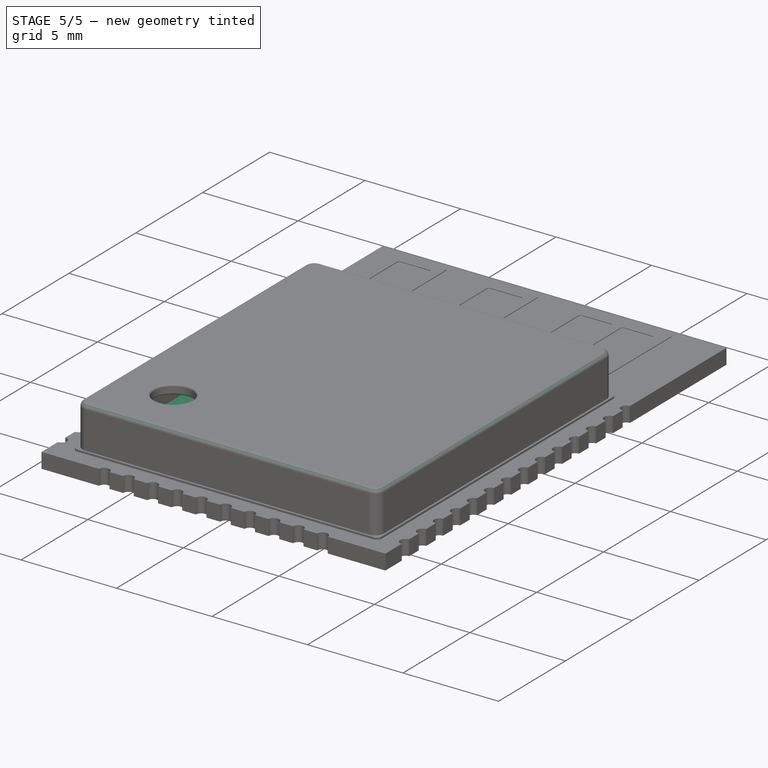
[diagram: stage 5 of 5 — iso view after this stage's code; geometry added in this stage tinted green]
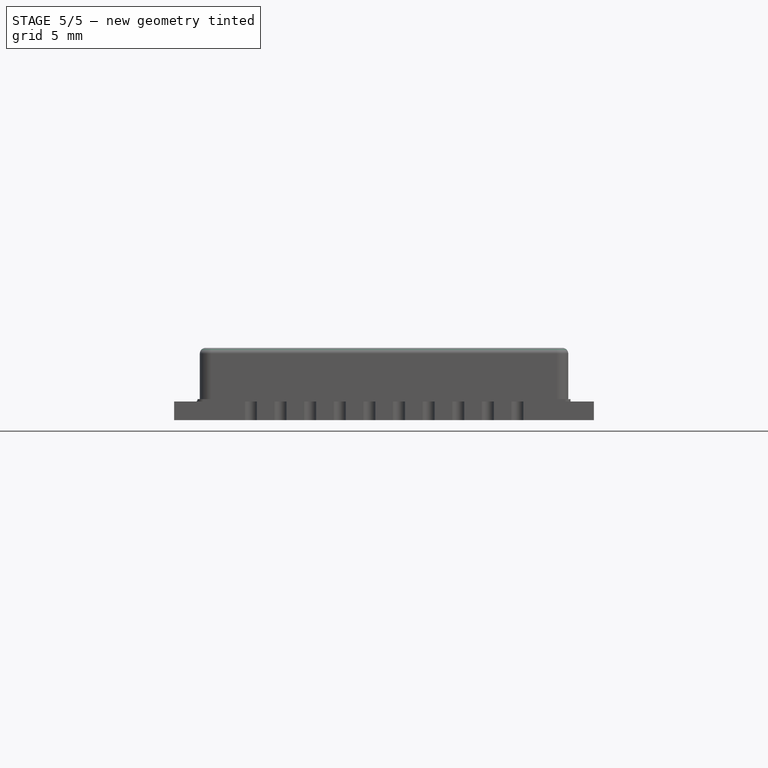
[diagram: stage 5 of 5 — front view after this stage's code; geometry added in this stage tinted green]
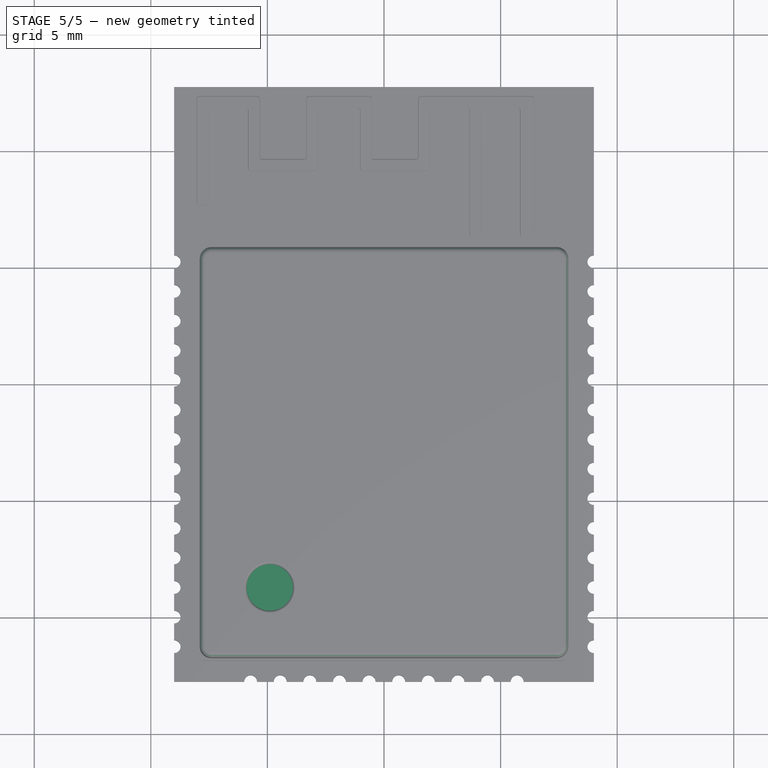
[diagram: stage 5 of 5 — top view after this stage's code; geometry added in this stage tinted green]
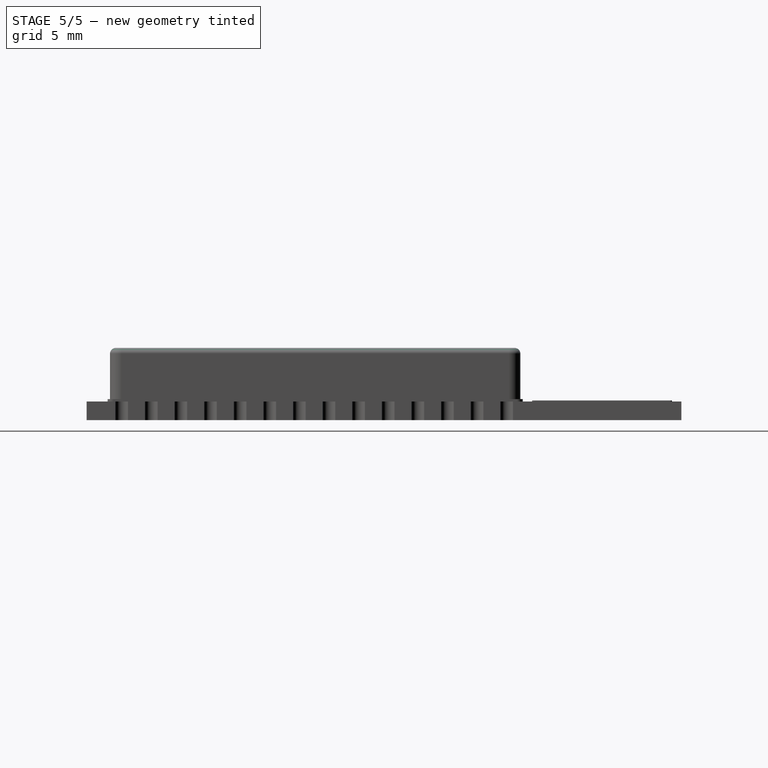
[diagram: stage 5 of 5 — right view after this stage's code; geometry added in this stage tinted green]
FEATURE [PartDesign::ShapeBinder] CopyPocket
  Placement = pos=(0,0,-0.1) rot=(0,0,1;0rad)
FEATURE [Sketcher::SketchObject] Sketch002
  MapMode = 5
  Placement = pos=(0,0,0.7) rot=(0,0,1;0rad)
  Support = -> [CopyPocket]
  sketch-geometry (8):
    g0: LineSegment StartX=-7.9 StartY=5.85 StartZ=0 EndX=7.9 EndY=5.85 EndZ=0
    g1: LineSegment StartX=7.9 StartY=5.85 StartZ=0 EndX=7.9 EndY=-11.75 EndZ=0
    g2: LineSegment StartX=7.9 StartY=-11.75 StartZ=0 EndX=-7.9 EndY=-11.75 EndZ=0
    g3: LineSegment StartX=-7.9 StartY=-11.75 StartZ=0 EndX=-7.9 EndY=5.85 EndZ=0
    g4: LineSegment [constr] StartX=-9 StartY=12.75 StartZ=0 EndX=9 EndY=12.75 EndZ=0
    g5: LineSegment [constr] StartX=9 StartY=12.75 StartZ=0 EndX=9 EndY=-12.75 EndZ=0
    g6: LineSegment [constr] StartX=9 StartY=-12.75 StartZ=0 EndX=-9 EndY=-12.75 EndZ=0
    g7: LineSegment [constr] StartX=-9 StartY=-12.75 StartZ=0 EndX=-9 EndY=12.75 EndZ=0
  constraints (24):
    c: Coincident(g0,g1)
    c: Coincident(g1,g2)
    c: Coincident(g2,g3)
    c: Coincident(g3,g0)
    c: Horizontal(g0)
    c: Horizontal(g2)
    c: Vertical(g1)
    c: Vertical(g3)
    c: Distance(g0) = 15.8
    c: Distance(g3) = 17.6
    c: Symmetric(g0,g0,g-2)
    c: Coincident(g4,g5)
    c: Coincident(g5,g6)
    c: Coincident(g6,g7)
    c: Coincident(g7,g4)
    c: Horizontal(g4)
    c: Horizontal(g6)
    c: Vertical(g5)
    c: Vertical(g7)
    c: Symmetric(g4,g4,g-2)
    c: Symmetric(g4,g5,g-1)
    c: Distance(g4) = 18
    c: Distance(g5) = 25.5
    c: DistanceY(g0,g4) = 6.9
FEATURE [PartDesign::Pad] Pad001
  Length = 0.1
  Length2 = 100
  Placement = pos=(0,0,-0.1) rot=(0,0,1;0rad)
  Profile = -> Sketch002
  Type = 0
FEATURE [PartDesign::Fillet] Fillet001
  Base = -> Fillet [Edge30,Edge34,Edge32,Edge29]
  BaseFeature = -> Fillet
  Placement = pos=(0,0,0.1) rot=(0,0,1;0rad)
  Radius = 0.25
FEATURE [PartDesign::Fillet] Fillet002
  Base = -> Fillet001 [Edge35,Edge37,Edge41,Edge45,Edge48,Edge47,Edge43,Edge39]
  BaseFeature = -> Fillet001
  Placement = pos=(0,0,0.1) rot=(0,0,1;0rad)
  Radius = 0.25
FEATURE [PartDesign::Fillet] Fillet003
  Base = -> Fillet002 [Edge37]
  BaseFeature = -> Fillet002
  Placement = pos=(0,0,0.1) rot=(0,0,1;0rad)
  Radius = 0.1
FEATURE [PartDesign::Fillet] Fillet004
  Base = -> Fillet003 [Edge29]
  BaseFeature = -> Fillet003
  Placement = pos=(0,0,0.1) rot=(0,0,1;0rad)
  Radius = 0.1
FEATURE [Part::MultiFuse] Fusion001
  Shapes = -> [Body,Body001,Body002,Body006,Fusion]
FEATURE [Image::ImagePlane] ImagePlane
  Placement = pos=(0.1,-1.2,3.1) rot=(0,0,1;0rad)
  XSize = 14
  YSize = 12
FEATURE [PartDesign::ShapeBinder] CopyFusion001
FEATURE [Sketcher::SketchObject] Sketch016
  MapMode = 5
  Placement = pos=(0,0,3.1) rot=(0,0,1;0rad)
  Support = -> [CopyFusion001]
  sketch-geometry (17):
    g0: ArcOfCircle CenterX=-1.65728 CenterY=0.569428 CenterZ=0 NormalX=0 NormalY=0 NormalZ=1 AngleXU=0 Radius=1.12 StartAngle=1.36397 EndAngle=4.91922
    g1: ArcOfCircle CenterX=-1.65728 CenterY=0.569428 CenterZ=0 NormalX=0 NormalY=0 NormalZ=1 AngleXU=0 Radius=1.7 StartAngle=1.43509 EndAngle=4.8481
    g2: LineSegment StartX=-1.42728 StartY=2.2538 StartZ=0 EndX=-1.42728 EndY=1.66556 EndZ=0
    g3: LineSegment StartX=-1.42728 StartY=-0.526702 StartZ=0 EndX=-1.42728 EndY=-1.11494 EndZ=0
    g4: ArcOfCircle CenterX=1.33272 CenterY=0.569428 CenterZ=0 NormalX=0 NormalY=0 NormalZ=1 AngleXU=0 Radius=1.7 StartAngle=1.47063 EndAngle=4.81256
    g5: ArcOfCircle CenterX=1.33272 CenterY=0.569428 CenterZ=0 NormalX=0 NormalY=0 NormalZ=1 AngleXU=0 Radius=1.18 StartAngle=1.42623 EndAngle=2.91508
    g6: ArcOfCircle CenterX=1.33272 CenterY=0.569428 CenterZ=0 NormalX=0 NormalY=0 NormalZ=1 AngleXU=0 Radius=1.18 StartAngle=3.3681 EndAngle=4.85696
    g7: LineSegment StartX=1.50272 StartY=2.26091 StartZ=0 EndX=1.50272 EndY=1.73712 EndZ=0
    g8: LineSegment StartX=1.50272 StartY=-0.598262 StartZ=0 EndX=1.50272 EndY=-1.12205 EndZ=0
    g9: LineSegment StartX=0.182862 StartY=0.834428 StartZ=0 EndX=1.16286 EndY=0.834428 EndZ=0
    g10: LineSegment StartX=1.16286 StartY=0.834428 StartZ=0 EndX=1.16286 EndY=0.304428 EndZ=0
    g11: LineSegment StartX=1.16286 StartY=0.304428 StartZ=0 EndX=0.182862 EndY=0.304428 EndZ=0
    g12: ArcOfCircle CenterX=4.69323 CenterY=0.722676 CenterZ=0 NormalX=0 NormalY=0 NormalZ=1 AngleXU=0 Radius=1.83 StartAngle=2.35158 EndAngle=5.49317
    g13: ArcOfCircle CenterX=4.69323 CenterY=0.722676 CenterZ=0 NormalX=0 NormalY=0 NormalZ=1 AngleXU=0 Radius=1.98 StartAngle=2.35158 EndAngle=5.49317
    g14: LineSegment StartX=3.29964 StartY=2.12919 StartZ=0 EndX=3.40521 EndY=2.02264 EndZ=0
    g15: LineSegment StartX=5.98125 StartY=-0.577286 StartZ=0 EndX=6.08683 EndY=-0.683841 EndZ=0
    g16: Circle CenterX=3.62573 CenterY=-0.351147 CenterZ=0 NormalX=0 NormalY=0 NormalZ=1 AngleXU=0 Radius=0.28
  constraints (55):
    c: Radius(g0) = 1.12
    c: Radius(g1) = 1.7
    c: Coincident(g1,g0)
    c: Vertical(g2)
    c: Vertical(g3)
    c: DistanceX(g3,g2) = 0
    c: Coincident(g2,g1)
    c: Coincident(g2,g0)
    c: Coincident(g1,g3)
    c: Coincident(g0,g3)
    c: Equal(g3,g2)
    c: DistanceX(g0) = -1.65728
    c: DistanceY(g0) = 0.569428
    c: DistanceX(g0,g0) = 0.23
    c: Equal(g4,g1)
    c: DistanceX(g0,g4) = 2.99
    c: DistanceY(g0,g4) = 0
    c: Coincident(g5,g4)
    c: Coincident(g6,g4)
    c: Vertical(g7)
    c: Vertical(g8)
    c: Coincident(g4,g7)
    c: Coincident(g7,g5)
    c: Coincident(g6,g8)
    c: Coincident(g8,g4)
    c: Radius(g5) = 1.18
    c: Equal(g5,g6)
    c: Horizontal(g9)
    c: Coincident(g9,g10)
    c: Vertical(g10)
    c: Coincident(g10,g11)
    c: Horizontal(g11)
    c: Coincident(g11,g6)
    c: Coincident(g9,g5)
    c: Equal(g11,g9)
    c: Distance(g10) = 0.53
    c: Distance(g9) = 0.98
    c: Equal(g7,g8)
    c: DistanceX(g4,g5) = 0.17
    c: DistanceX(g12,g4) = -3.36051
    c: DistanceY(g12,g4) = -0.153248
    c: Coincident(g13,g12)
    c: Radius(g13) = 1.98
    c: Radius(g12) = 1.83
    c: Parallel(g15,g14)
    c: Equal(g15,g14)
    c: Coincident(g14,g13)
    c: Coincident(g14,g12)
    c: Coincident(g15,g12)
    c: Coincident(g15,g13)
    c: Radius(g16) = 0.28
    c: DistanceX(g16,g12) = 1.0675
    c: DistanceY(g16,g12) = 1.07382
    c: DistanceX(g12,g12) = 1.28802
    c: Distance(g15) = 0.15
FEATURE [PartDesign::Body] Body007  label="graphics"
  Group = -> [CopyFusion001,Sketch016]
  Origin = -> Origin007
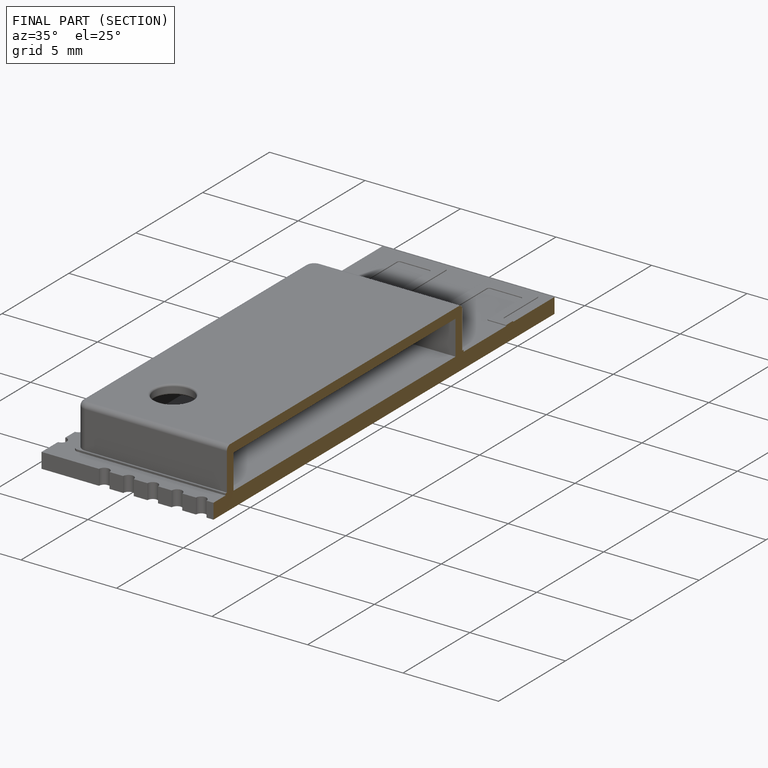
[diagram: finished part — half-section view (interior)]
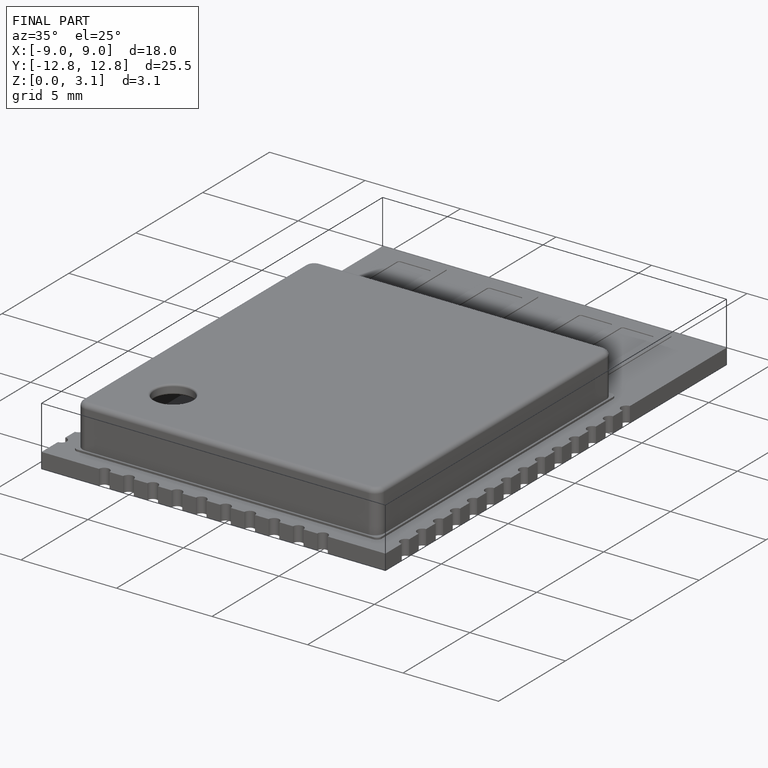
[diagram: finished part — iso view with bounding-box wireframe]
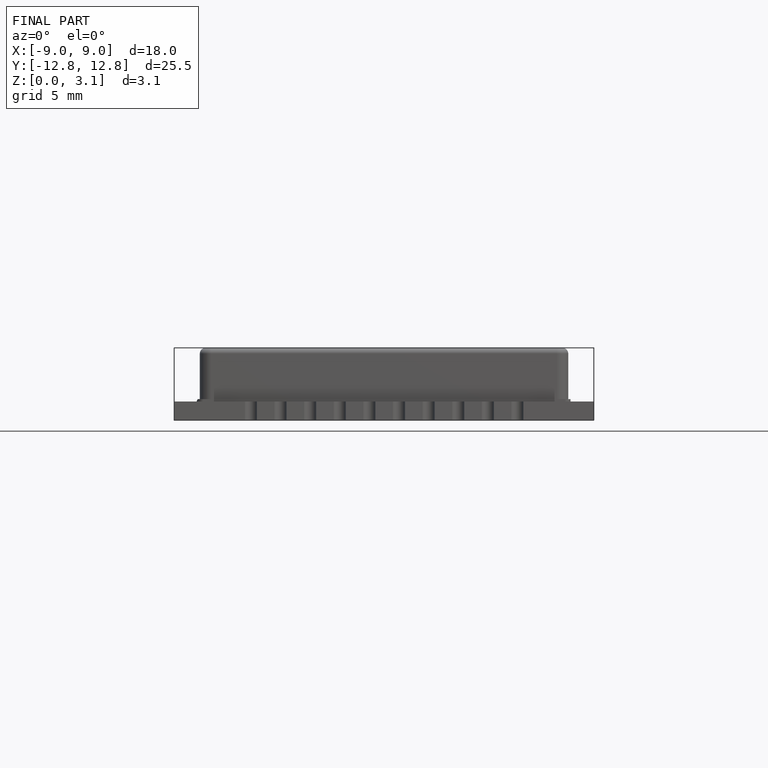
[diagram: finished part — front view with bounding-box wireframe]
